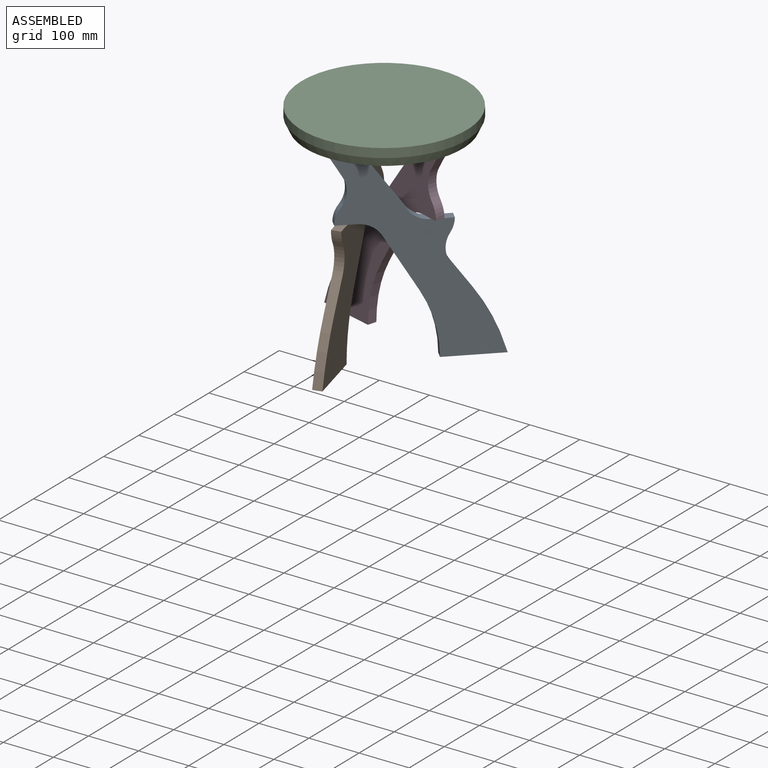
[diagram: assembled view]
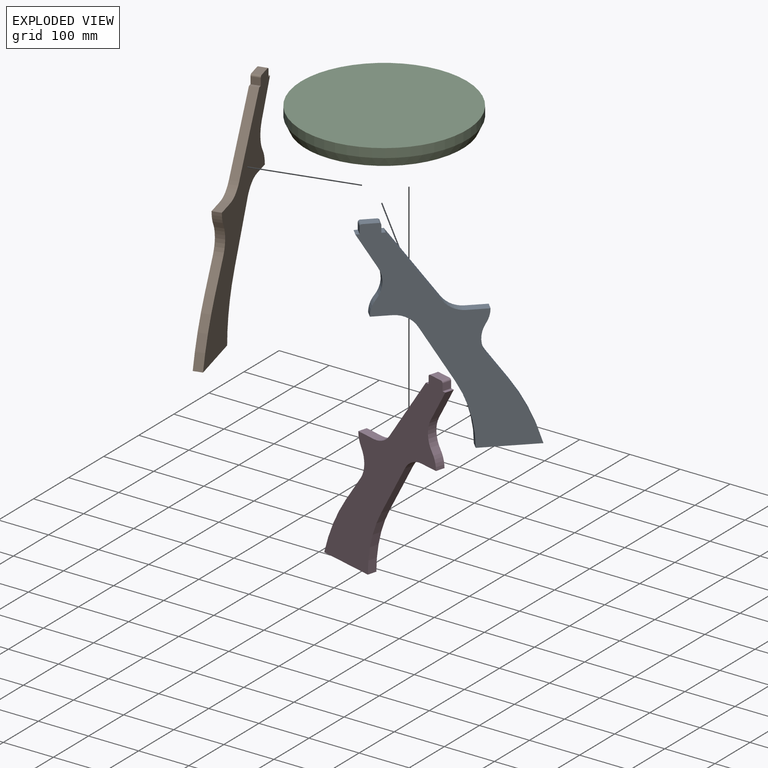
[diagram: exploded view]
GUIDED TOUR — MATED ASSEMBLY (Onshape document 120d1e2c6438789e9649d718, AutoMate assembly 120d1e2c6438789e9649d718_95fdae9ebc2a5eb4f7426859_deb789ef008cb37c723cf28c_default)

This assembly has 4 components, labeled P0..P3 below (a component is one placed occurrence of a part; the same part can appear more than once), held together by 9 mates. A mate is a constraint between two components; its type names the relative motion it leaves free:
  PLANAR — leaves sliding in the plane through the listed point (normal = the listed direction) and rotation about that normal free.
Axis/direction vectors are unit vectors and 'through' points are millimeter coordinates, both in the assembly's world frame.

MATES
  1. PLANAR "Planar 4": P0 <-> P2, direction (-0.700, 0.714, 0.000) through (97.20, 47.25, -83.39) mm
  2. PLANAR "Planar 6": P0 <-> P2, direction (-0.714, -0.700, 0.000) through (-47.23, -106.92, 156.23) mm
  3. PLANAR "Planar 7": P1 <-> P2, direction (-0.968, -0.249, 0.000) through (-61.00, 27.24, -0.77) mm
  4. PLANAR "Planar 5": P0 <-> P2, direction (0.000, 0.000, 1.000) through (-34.38, -94.32, 167.23) mm
  5. PLANAR "Planar 9": P2 <-> P1, direction (0.249, -0.968, 0.000) through (-68.98, 94.36, 158.23) mm
  6. PLANAR "Planar 8": P1 <-> P2, direction (0.000, 0.000, 1.000) through (-64.50, 76.93, 167.23) mm
  7. PLANAR "Planar 2": P3 <-> P2, direction (0.000, 0.000, 1.000) through (98.87, 17.39, 167.23) mm
  8. PLANAR "Planar 1": P3 <-> P2, direction (0.268, 0.963, 0.000) through (54.09, 39.21, -0.77) mm
  9. PLANAR "Planar 3": P3 <-> P2, direction (-0.963, 0.268, 0.000) through (81.53, 22.22, 156.23) mm

ASSEMBLY ORDER
  1. P2 — the base component [order heuristic]
  2. P0 [order heuristic]
  3. P1 [order heuristic]
  4. P3 [order heuristic]
Order-tag legend:
  [order heuristic] — this assembly is geometrically interlocked (no collision-free removal order exists), so components are listed in mate-graph order; insertion feasibility is not verified.

Of the 4 components, 4 carry the full construction recipe — the FeatureScript program that regenerates the part's solid from scratch; the rest are supplied as boundary geometry only.
Each toured component is shown spotlighted twice — in the assembled view, then in the exploded view, where a leader line traces a displaced component back to its assembled socket (saturated green if recipe-attached, orange if geometry-only; every other component desaturated gray) — followed by its recipe or geometry summary and the mates that hold it.
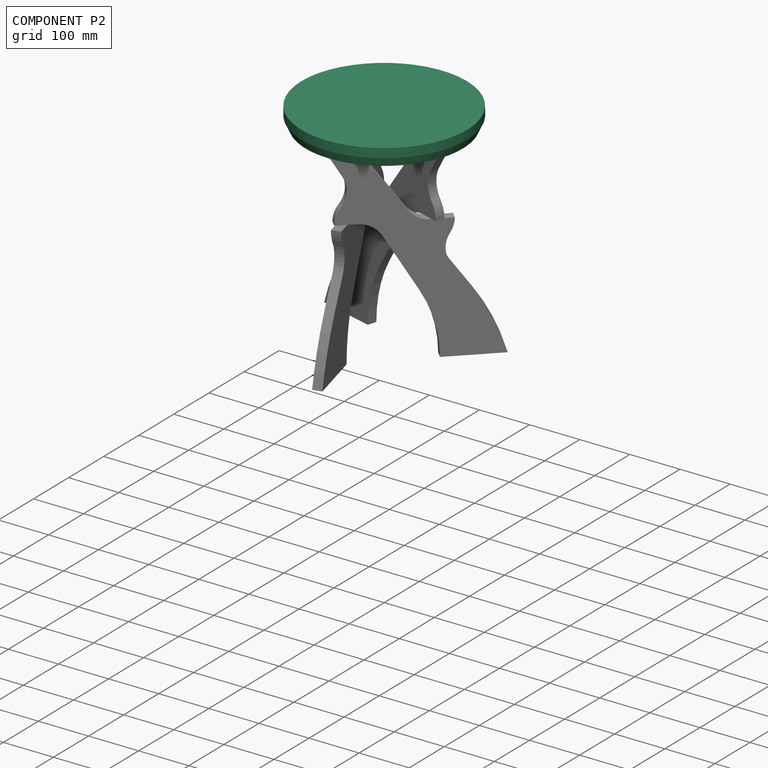
[diagram: component P2 — assembled]
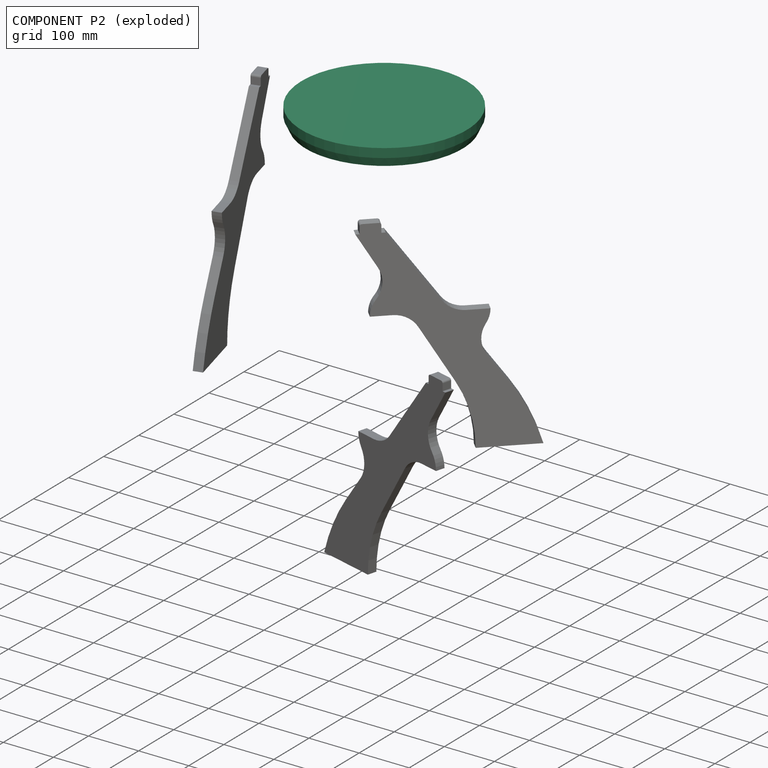
[diagram: component P2 — exploded]
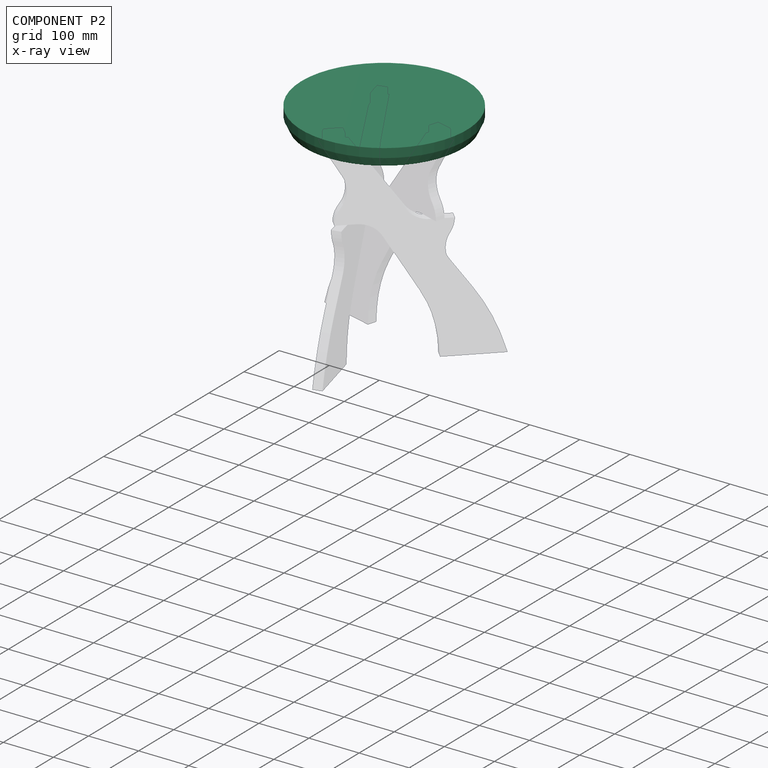
[diagram: component P2 — x-ray view]
COMPONENT P2 — recipe-attached (CADFS 00982645, mesh-verified: the recipe's output STEP matches this component's geometry to below the mesh-comparison resolution (tessellation chordal tolerance ~0.702 mm)).
Held by: PLANAR mate "Planar 4" to P0; PLANAR mate "Planar 6" to P0; PLANAR mate "Planar 7" to P1; PLANAR mate "Planar 5" to P0; PLANAR mate "Planar 9" to P1; PLANAR mate "Planar 8" to P1; PLANAR mate "Planar 2" to P3; PLANAR mate "Planar 1" to P3; PLANAR mate "Planar 3" to P3.
Construction recipe (FeatureScript — the CAD program that rebuilds this solid; sketch coordinates are in the units given by the * unit suffixes, e.g. mm):

FeatureScript 1511;
import(path : "onshape/std/geometry.fs", version : "1511.0");
import(path : "onshape/std/common.fs", version : "1511.0");
const mm = millimeter;
const VERTEX = EntityType.VERTEX;
const EDGE = EntityType.EDGE;
const FACE = EntityType.FACE;
const BODY = EntityType.BODY;
function v(x, y){return vector(x, y);}
function OD(order){return orderDisambiguation(order);}
function OSD(set){return originalSetDisambiguation(set);}
function TD(topology){return topologyDisambiguation(topology);}
function TDD(query){return trueDependencyDisambiguation(query);}
function sQuery(a, b, c) {return sketchEntityQuery(a, b, c);}

annotation { "Feature Type Name" : "Feature", "Feature Type Description" : "" }
export const myFeature = defineFeature(function(context is Context, id is Id, definition is map)
    precondition{}
    {
        {
            var Q0;
            Q0=qCreatedBy(makeId("Top.planeOp"),FACE);
            var sketch = newSketch(context, id + "F0", { "sketchPlane" : qUnion([Q0])});
            skCircle(sketch, "E0", {"center": v(0, 0) * mm, "radius": 165 * mm});
            skSolve(sketch);
        }
        {
            var Q0;
            Q0=makeQuery(id+"F0.imprint","IMPRINT",FACE,{"disambiguationData":[TD([[makeQuery(id+"F0.imprint","IMPRINT",EDGE,{"derivedFrom":sQuery(id+"F0.wireOp",EDGE,"E0")}),1.0]])]});
            extrude(context, id + "F1", {"entities" : qUnion([Q0]), "depth" : 36 * mm, "offsetDistance" : 25 * mm});
        }
        {
            var Q0;
            Q0=makeQuery(id+"F1.opExtrude","CAP_FACE",FACE,{"disambiguationData":[OSD([sQuery(id+"F0.wireOp",EDGE,"E0")])],"isStart":true});
            var sketch = newSketch(context, id + "F2", { "sketchPlane" : qUnion([Q0])});
            skLineSegment(sketch, "E1.bottom", {"start": v(-24.59, 111.18) * mm, "end": v(-9, 120.18) * mm});
            skLineSegment(sketch, "E1.top", {"start": v(-6.59, 80) * mm, "end": v(9, 89) * mm});
            skLineSegment(sketch, "E1.left", {"start": v(-24.59, 111.18) * mm, "end": v(-6.59, 80) * mm});
            skLineSegment(sketch, "E1.right", {"start": v(-9, 120.18) * mm, "end": v(9, 89) * mm});
            skLineSegment(sketch, "E2", {"start": v(0, 0) * mm, "end": v(0, 83.8) * mm, "construction": true});
            skLineSegment(sketch, "E3.1.0", {"start": v(-99.58, -67.88) * mm, "end": v(-81.58, -36.7) * mm});
            skLineSegment(sketch, "E3.1.1", {"start": v(-83.99, -76.88) * mm, "end": v(-99.58, -67.88) * mm});
            skLineSegment(sketch, "E3.1.2", {"start": v(-83.99, -76.88) * mm, "end": v(-65.99, -45.7) * mm});
            skLineSegment(sketch, "E3.1.3", {"start": v(-65.99, -45.7) * mm, "end": v(-81.58, -36.7) * mm});
            skLineSegment(sketch, "E3.2.0", {"start": v(108.58, -52.3) * mm, "end": v(72.58, -52.3) * mm});
            skLineSegment(sketch, "E3.2.1", {"start": v(108.58, -34.3) * mm, "end": v(108.58, -52.3) * mm});
            skLineSegment(sketch, "E3.2.2", {"start": v(108.58, -34.3) * mm, "end": v(72.58, -34.3) * mm});
            skLineSegment(sketch, "E3.2.3", {"start": v(72.58, -34.3) * mm, "end": v(72.58, -52.3) * mm});
            skPoint(sketch, "E3.center", {"position": v(0, 0) * mm});
            skSolve(sketch);
        }
        {
            var Q0;
            Q0=makeQuery(id+"F2.imprint","IMPRINT",FACE,{"disambiguationData":[TD([[makeQuery(id+"F2.imprint","IMPRINT",EDGE,{"derivedFrom":sQuery(id+"F2.wireOp",EDGE,"E1.bottom")}),-1.0]])]});
            var Q1;
            Q1=makeQuery(id+"F2.imprint","IMPRINT",FACE,{"disambiguationData":[TD([[makeQuery(id+"F2.imprint","IMPRINT",EDGE,{"derivedFrom":sQuery(id+"F2.wireOp",EDGE,"E3.2.0")}),-1.0]])]});
            var Q2;
            Q2=makeQuery(id+"F2.imprint","IMPRINT",FACE,{"disambiguationData":[TD([[makeQuery(id+"F2.imprint","IMPRINT",EDGE,{"derivedFrom":sQuery(id+"F2.wireOp",EDGE,"E3.1.0")}),-1.0]])]});
            extrude(context, id + "F3", {"entities" : qUnion([Q0, Q1, Q2]), "operationType" : NewBodyOperationType.REMOVE, "oppositeDirection" : true, "depth" : 18 * mm, "offsetDistance" : 25 * mm});
        }
        {
            var Q0;
            Q0=makeQuery(id+"F1.opExtrude","CAP_EDGE",EDGE,{"disambiguationData":[OSD([sQuery(id+"F0.wireOp",EDGE,"E0")])],"isStart":true});
            chamfer(context, id + "F4", {"entities" : qUnion([Q0]), "chamferType" : ChamferType.OFFSET_ANGLE, "width" : 18 * mm, "oppositeDirection" : false, "angle" : 25 * degree, "tangentPropagation" : true});
        }
    });
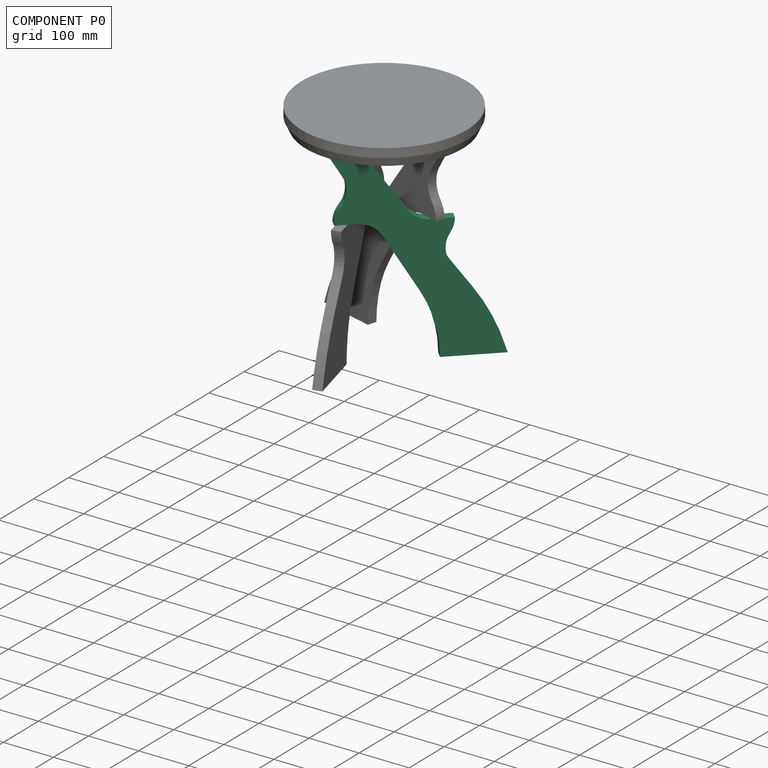
[diagram: component P0 — assembled]
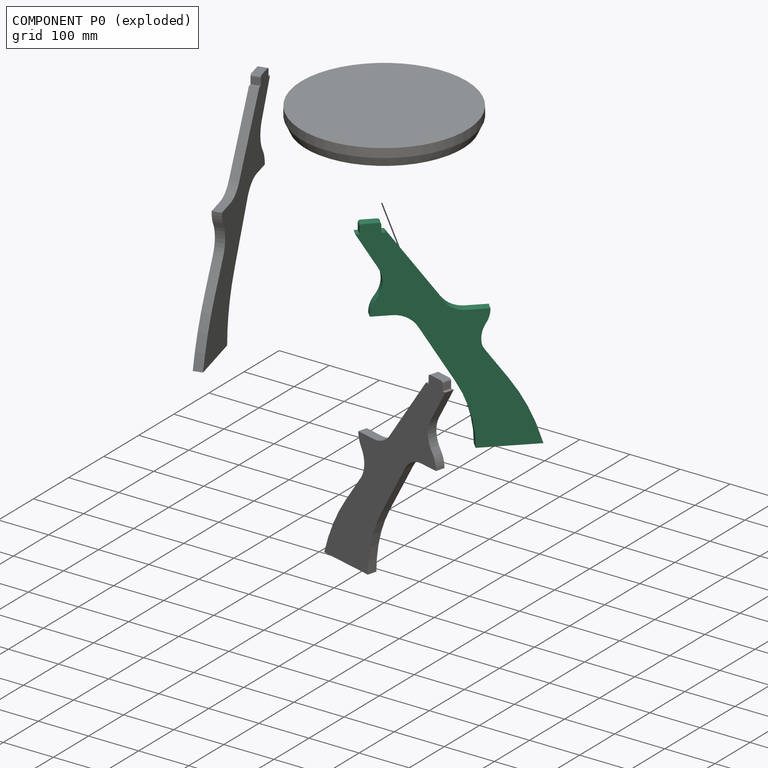
[diagram: component P0 — exploded]
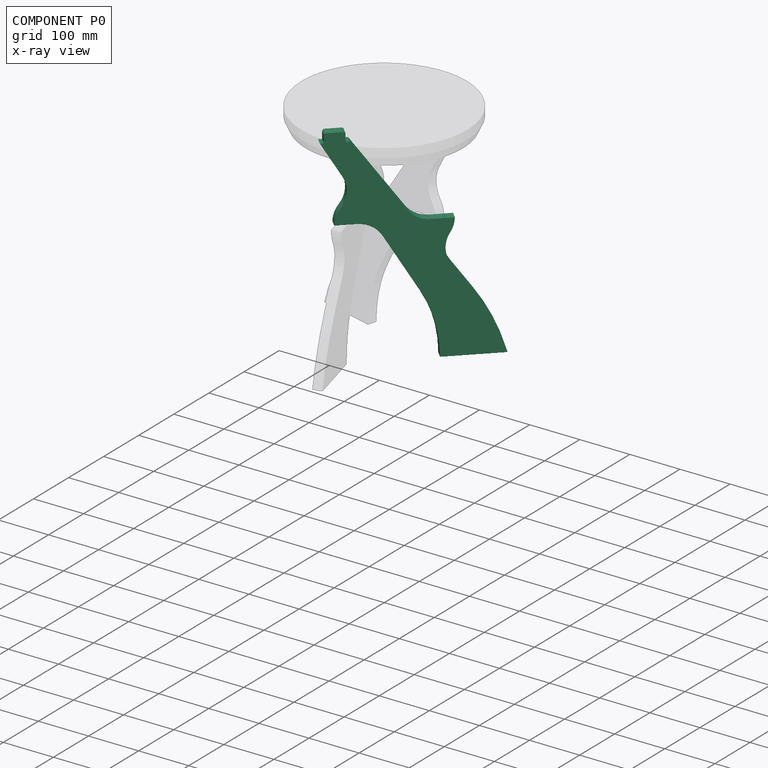
[diagram: component P0 — x-ray view]
COMPONENT P0 — recipe-attached (CADFS 00982644, mesh-verified: the recipe's output STEP matches this component's geometry to below the mesh-comparison resolution (tessellation chordal tolerance ~0.783 mm)).
Held by: PLANAR mate "Planar 4" to P2; PLANAR mate "Planar 6" to P2; PLANAR mate "Planar 5" to P2.
Construction recipe (FeatureScript — the CAD program that rebuilds this solid; sketch coordinates are in the units given by the * unit suffixes, e.g. mm):

FeatureScript 1511;
import(path : "onshape/std/geometry.fs", version : "1511.0");
import(path : "onshape/std/common.fs", version : "1511.0");
const mm = millimeter;
const VERTEX = EntityType.VERTEX;
const EDGE = EntityType.EDGE;
const FACE = EntityType.FACE;
const BODY = EntityType.BODY;
function v(x, y){return vector(x, y);}
function OD(order){return orderDisambiguation(order);}
function OSD(set){return originalSetDisambiguation(set);}
function TD(topology){return topologyDisambiguation(topology);}
function TDD(query){return trueDependencyDisambiguation(query);}
function sQuery(a, b, c) {return sketchEntityQuery(a, b, c);}

annotation { "Feature Type Name" : "Feature", "Feature Type Description" : "" }
export const myFeature = defineFeature(function(context is Context, id is Id, definition is map)
    precondition{}
    {
        {
            var Q0;
            Q0=qCreatedBy(makeId("Front.planeOp"),FACE);
            var sketch = newSketch(context, id + "F0", { "sketchPlane" : qUnion([Q0])});
            skLineSegment(sketch, "E0.bottom", {"start": v(0, 0) * mm, "end": v(330, 0) * mm, "construction": true});
            skLineSegment(sketch, "E0.left", {"start": v(0, 0) * mm, "end": v(0, 400) * mm, "construction": true});
            skLineSegment(sketch, "E0.right", {"start": v(330, 0) * mm, "end": v(330, 400) * mm, "construction": true});
            skLineSegment(sketch, "E1.bottom", {"start": v(0, 436) * mm, "end": v(330, 436) * mm, "construction": true});
            skLineSegment(sketch, "E1.top", {"start": v(0, 400) * mm, "end": v(330, 400) * mm, "construction": true});
            skLineSegment(sketch, "E2", {"start": v(0, 400) * mm, "end": v(0, 436) * mm, "construction": true});
            skLineSegment(sketch, "E3", {"start": v(330, 436) * mm, "end": v(330, 400) * mm, "construction": true});
            skLineSegment(sketch, "E4", {"start": v(0, 250) * mm, "end": v(330, 250) * mm, "construction": true});
            skLineSegment(sketch, "E5", {"start": v(165, 0) * mm, "end": v(165, 436) * mm, "construction": true});
            skCircle(sketch, "E6", {"center": v(215, 250) * mm, "radius": 50 * mm, "construction": true});
            skLineSegment(sketch, "E7", {"start": v(330, 0) * mm, "end": v(165, 250) * mm, "construction": true});
            skLineSegment(sketch, "E8", {"start": v(165, 250) * mm, "end": v(66, 400) * mm, "construction": true});
            skLineSegment(sketch, "E9", {"start": v(91, 400) * mm, "end": v(297.14, 114.68) * mm, "construction": true});
            skLineSegment(sketch, "E10", {"start": v(280, 0) * mm, "end": v(352.68, 0) * mm});
            skCircle(sketch, "E11", {"center": v(299.6, 196.67) * mm, "radius": 50 * mm, "construction": true});
            skCircle(sketch, "E12", {"center": v(224.93, 300) * mm, "radius": 50 * mm, "construction": true});
            skLineSegment(sketch, "E13", {"start": v(280, 0) * mm, "end": v(41, 400) * mm, "construction": true});
            skCircle(sketch, "E14", {"center": v(115, 250) * mm, "radius": 50 * mm, "construction": true});
            skCircle(sketch, "E15", {"center": v(35.86, 311.13) * mm, "radius": 50 * mm, "construction": true});
            skCircle(sketch, "E16", {"center": v(102.25, 200) * mm, "radius": 50 * mm, "construction": true});
            skCircle(sketch, "E17", {"center": v(0, 0) * mm, "radius": 240.36 * mm, "construction": true});
            skLineSegment(sketch, "E18", {"start": v(280, 0) * mm, "end": v(240.36, 0) * mm});
            skLineSegment(sketch, "E19", {"start": v(297.14, 114.68) * mm, "end": v(259.06, 167.39) * mm});
            skLineSegment(sketch, "E20", {"start": v(206.34, 123.29) * mm, "end": v(145.18, 225.65) * mm});
            skLineSegment(sketch, "E21", {"start": v(65, 250) * mm, "end": v(102.25, 250) * mm});
            skArc(sketch, "E22", {"start": v(102.25, 250) * mm, "mid": v(126.93, 243.49) * mm, "end": v(145.18, 225.65) * mm});
            skArc(sketch, "E23", {"start": v(206.34, 123.29) * mm, "mid": v(231.7, 63.95) * mm, "end": v(240.36, 0) * mm});
            skArc(sketch, "E24", {"start": v(65, 250) * mm, "mid": v(67.68, 266.15) * mm, "end": v(75.43, 280.56) * mm});
            skArc(sketch, "E25", {"start": v(259.06, 167.39) * mm, "mid": v(249.62, 195.1) * mm, "end": v(257.3, 223.33) * mm});
            skArc(sketch, "E26", {"start": v(257.3, 223.33) * mm, "mid": v(263.04, 236.12) * mm, "end": v(265, 250) * mm});
            skArc(sketch, "E27", {"start": v(224.93, 250) * mm, "mid": v(202.18, 255.48) * mm, "end": v(184.4, 270.72) * mm});
            skLineSegment(sketch, "E28", {"start": v(265, 250) * mm, "end": v(224.93, 250) * mm});
            skArc(sketch, "E29", {"start": v(75.43, 280.56) * mm, "mid": v(85.77, 308.15) * mm, "end": v(78.78, 336.77) * mm});
            skLineSegment(sketch, "E30", {"start": v(184.4, 270.72) * mm, "end": v(91, 400) * mm});
            skLineSegment(sketch, "E31", {"start": v(78.78, 336.77) * mm, "end": v(41, 400) * mm});
            skLineSegment(sketch, "E32", {"start": v(48, 400) * mm, "end": v(48, 414) * mm});
            skLineSegment(sketch, "E33", {"start": v(84, 414) * mm, "end": v(84, 400) * mm});
            skLineSegment(sketch, "E34", {"start": v(52, 418) * mm, "end": v(80, 418) * mm});
            skPoint(sketch, "E35.visualSharp", {"position": v(48, 418) * mm});
            skArc(sketch, "E35.filletArc", {"start": v(52, 418) * mm, "mid": v(49.17, 416.83) * mm, "end": v(48, 414) * mm});
            skPoint(sketch, "E36.visualSharp", {"position": v(84, 418) * mm});
            skArc(sketch, "E36.filletArc", {"start": v(84, 414) * mm, "mid": v(82.83, 416.83) * mm, "end": v(80, 418) * mm});
            skLineSegment(sketch, "E37", {"start": v(48, 400) * mm, "end": v(41, 400) * mm});
            skLineSegment(sketch, "E38", {"start": v(84, 400) * mm, "end": v(91, 400) * mm});
            skCircle(sketch, "E39", {"center": v(0, -100) * mm, "radius": 366.58 * mm, "construction": true});
            skArc(sketch, "E40", {"start": v(352.68, 0) * mm, "mid": v(329.93, 59.77) * mm, "end": v(297.14, 114.68) * mm});
            skPoint(sketch, "E41.orphan", {"position": v(380, 0) * mm});
            skSolve(sketch);
        }
        {
            var Q0;
            Q0 = qSketchRegion(id + "F0", true);
            extrude(context, id + "F1", {"entities" : qUnion([Q0]), "depth" : 18 * mm, "offsetDistance" : 25 * mm});
        }
    });
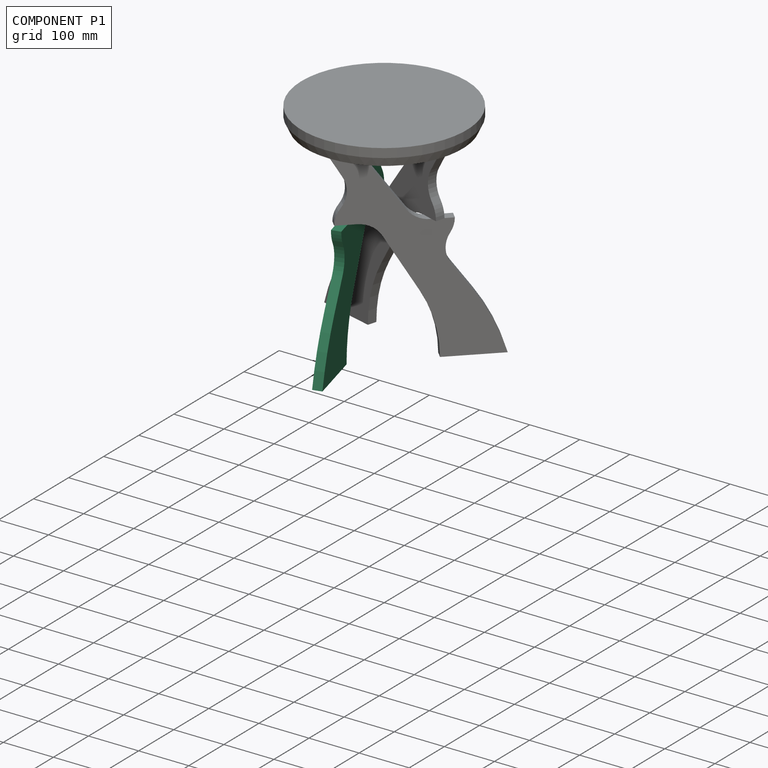
[diagram: component P1 — assembled]
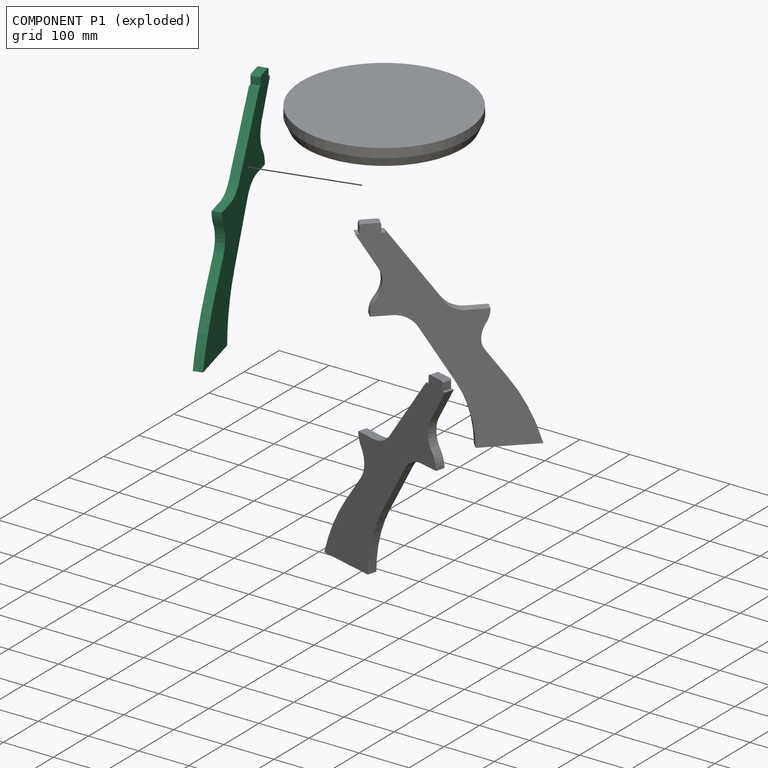
[diagram: component P1 — exploded]
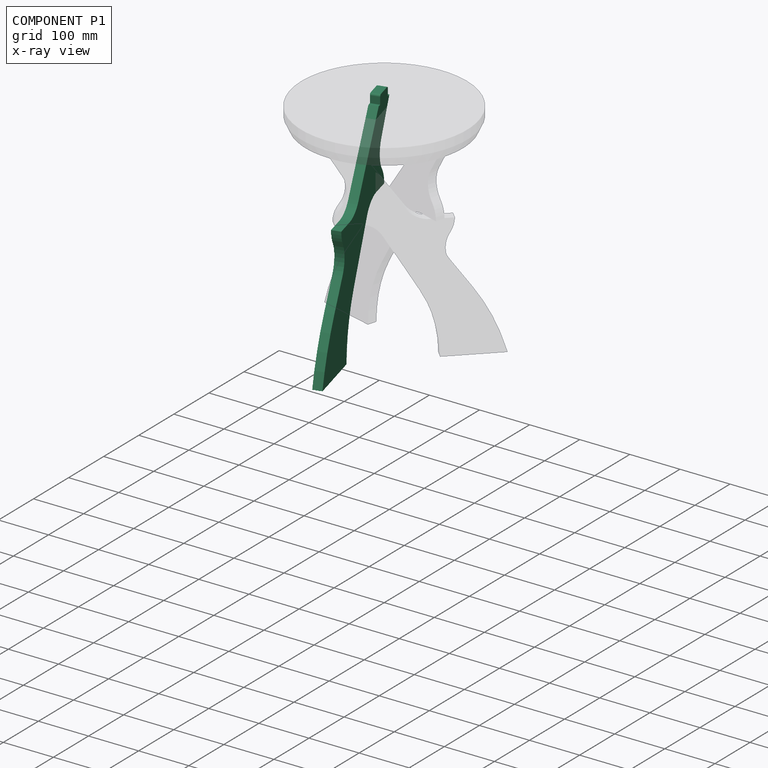
[diagram: component P1 — x-ray view]
COMPONENT P1 — same part as P0 (CADFS 00982644); its construction recipe is shown at P0.
Held by: PLANAR mate "Planar 7" to P2; PLANAR mate "Planar 9" to P2; PLANAR mate "Planar 8" to P2.
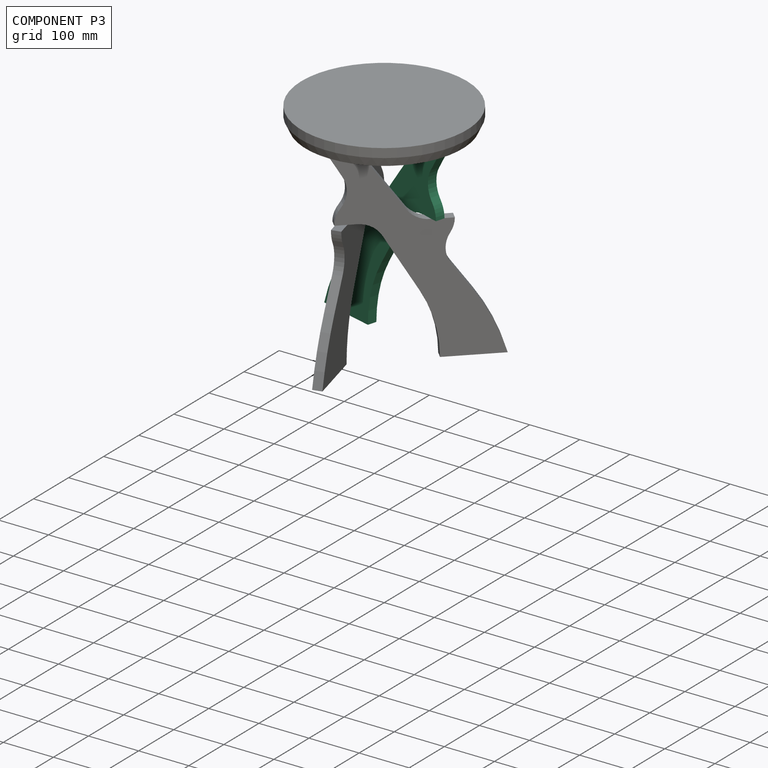
[diagram: component P3 — assembled]
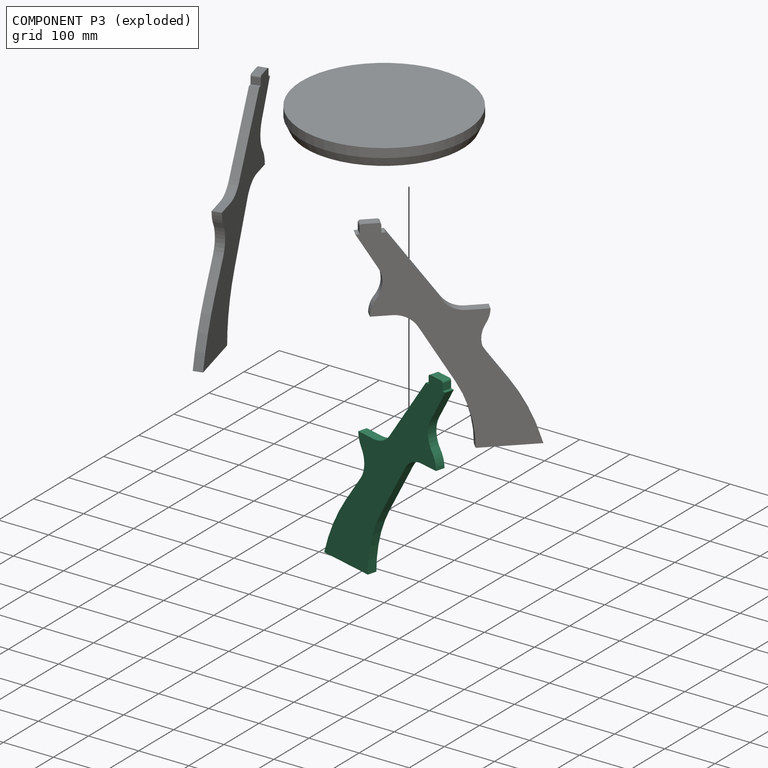
[diagram: component P3 — exploded]
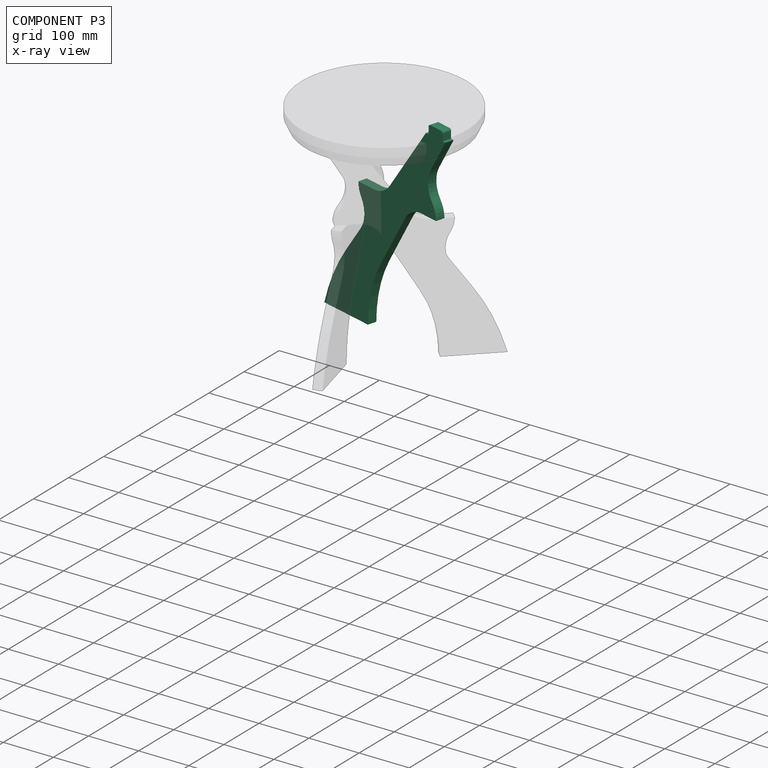
[diagram: component P3 — x-ray view]
COMPONENT P3 — same part as P0 (CADFS 00982644); its construction recipe is shown at P0.
Held by: PLANAR mate "Planar 2" to P2; PLANAR mate "Planar 1" to P2; PLANAR mate "Planar 3" to P2.
PROVENANCE & LICENSES
Assembly (occurrences, transforms, mates, per-part STEP geometry): AutoMate dataset, Zenodo record 7776208, CC0.
Construction recipes: CADFS (HuggingFace VladPyatov/CADFS, CC-BY-4.0, layered over the ABC dataset), FeatureScript reconstruction programs keyed by ABC model id.
Join: ABC meta listings map ABC model id -> Onshape documentId; within a shared document, parts are matched by geometric signature (bounding-box dims + volume at 0.1% relative tolerance, exact B-rep face/solid counts).
Verification: 4 of this assembly's 4 components carry a recipe attachment, and every attachment is mesh-verified: the CADFS STEP and the AutoMate member STEP were compared as meshes in their shared local frame (symmetric sampled-point-to-mesh distance); worst across the 4 attachments: below the mesh-comparison resolution (tessellation chordal tolerance ~0.783 mm) on a 522 mm part.
Renders: orthographic iso camera (az 35 / el 25); the floor grid conveys scale (grid pitch printed in each image; no ruler). In the exploded view each component is displaced by its stored offset vector: the offsets alone carry the explosion direction (mate normal/axis signs are not orientation cues and do not encode it), and separation distances are assigned per mate-chain, not proportionally to assembly-order depth.
